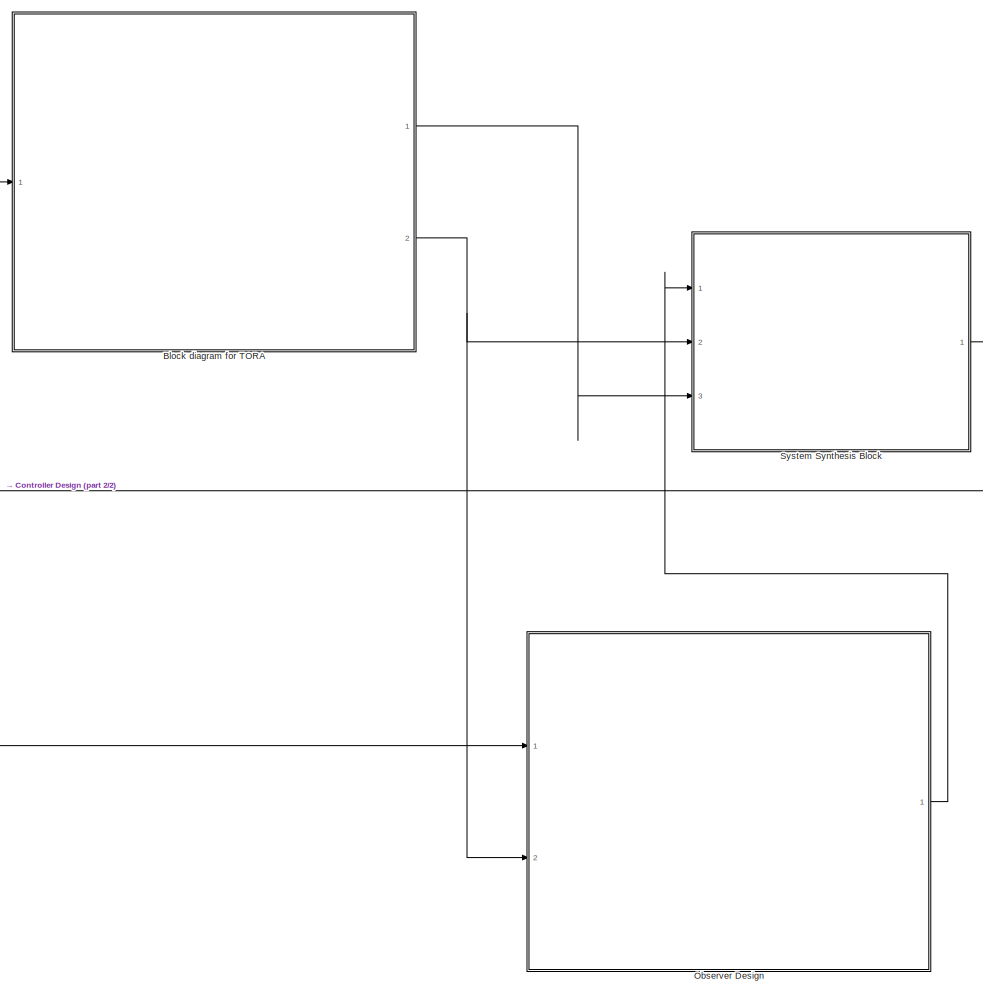
[diagram: root canvas - part 1/2, center side, full height]
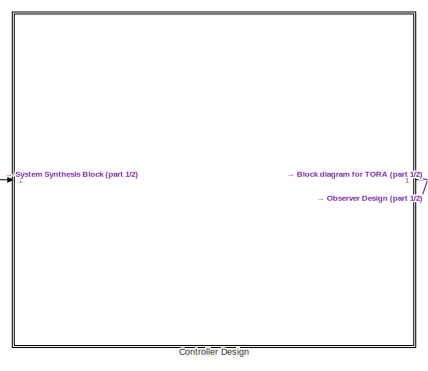
[diagram: root canvas - part 2/2, bottom left region]
MODEL slx_fd6124235038
KIND model
CONFIG AbsTol = auto
CONFIG EnableMultiTasking = off
CONFIG FixedStep = auto
CONFIG MaxStep = auto
CONFIG MinStep = auto
CONFIG RelTol = 1e-3
CONFIG SampleTimeConstraint = Unconstrained
CONFIG Solver = VariableStepAuto
CONFIG SolverName = VariableStepAuto
CONFIG StartTime = 0.0
CONFIG StopTime = 10.0
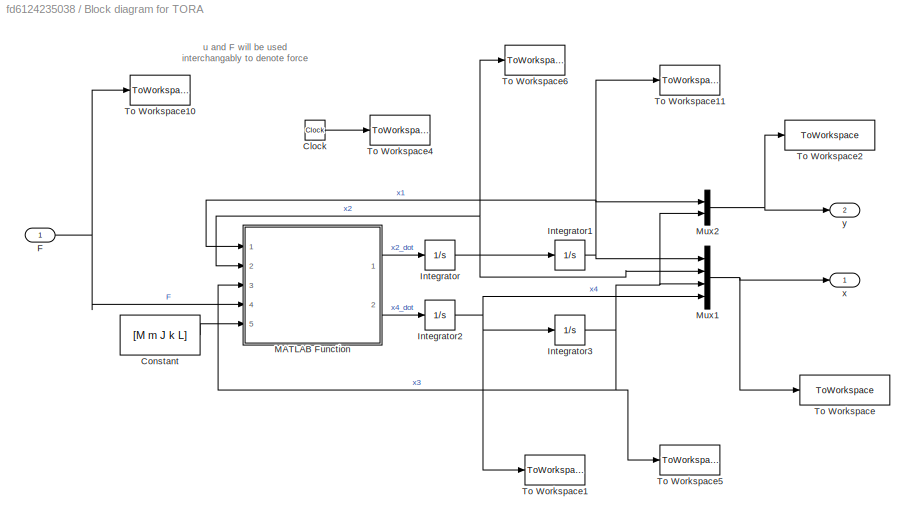
BLOCK [SubSystem] Block diagram for TORA
  Ports = [1, 2]
  RequestExecContextInheritance = off
BLOCK [Clock] Block diagram for TORA/Clock
BLOCK [Constant] Block diagram for TORA/Constant
  Value = [M m J k L]
BLOCK [Inport] Block diagram for TORA/F
  IconDisplay = Port number
BLOCK [Integrator] Block diagram for TORA/Integrator
  InitialCondition = x0(2)
  Ports = [1, 1]
BLOCK [Integrator] Block diagram for TORA/Integrator1
  InitialCondition = x0(1)
  Ports = [1, 1]
BLOCK [Integrator] Block diagram for TORA/Integrator2
  InitialCondition = x0(4)
  Ports = [1, 1]
BLOCK [Integrator] Block diagram for TORA/Integrator3
  InitialCondition = x0(3)
  Ports = [1, 1]
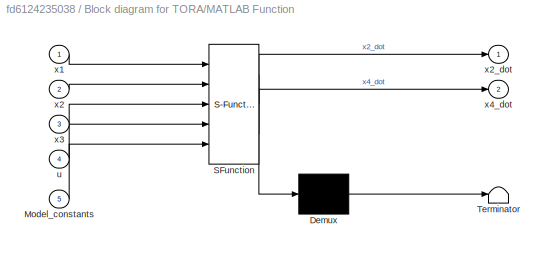
BLOCK [SubSystem] Block diagram for TORA/MATLAB Function
  ErrorFcn = Stateflow.Translate.translate
  PermitHierarchicalResolution = ExplicitOnly
  Ports = [5, 2]
  RequestExecContextInheritance = off
  SFBlockType = MATLAB Function
  TreatAsAtomicUnit = on
BLOCK [Demux] Block diagram for TORA/MATLAB Function/ Demux 
  DisplayOption = bar
  Outputs = 1
  Ports = [1, 1]
BLOCK [S-Function] Block diagram for TORA/MATLAB Function/ SFunction 
  EnableBusSupport = on
  FunctionName = sf_sfun
  PortCounts = [5 3]
  Ports = [5, 3]
  SFcnIsStateOwnerBlock = off
  SFunctionDeploymentMode = off
  Tag = Stateflow S-Function 2
BLOCK [Terminator] Block diagram for TORA/MATLAB Function/ Terminator 
BLOCK [Inport] Block diagram for TORA/MATLAB Function/Model_constants
  IconDisplay = Port number
  Port = 5
BLOCK [Inport] Block diagram for TORA/MATLAB Function/u
  IconDisplay = Port number
  Port = 4
BLOCK [Inport] Block diagram for TORA/MATLAB Function/x1
  IconDisplay = Port number
BLOCK [Inport] Block diagram for TORA/MATLAB Function/x2
  IconDisplay = Port number
  Port = 2
BLOCK [Outport] Block diagram for TORA/MATLAB Function/x2_dot
  IconDisplay = Port number
BLOCK [Inport] Block diagram for TORA/MATLAB Function/x3
  IconDisplay = Port number
  Port = 3
BLOCK [Outport] Block diagram for TORA/MATLAB Function/x4_dot
  IconDisplay = Port number
  Port = 2
BLOCK [Mux] Block diagram for TORA/Mux1
  DisplayOption = bar
  Ports = [4, 1]
BLOCK [Mux] Block diagram for TORA/Mux2
  DisplayOption = bar
  Inputs = 2
  Ports = [2, 1]
BLOCK [ToWorkspace] Block diagram for TORA/To Workspace
  FixptAsFi = on
  MaxDataPoints = inf
  Ports = [1]
  SampleTime = -1
  VariableName = x
BLOCK [ToWorkspace] Block diagram for TORA/To Workspace1
  MaxDataPoints = inf
  Ports = [1]
  SampleTime = -1
  VariableName = x4
BLOCK [ToWorkspace] Block diagram for TORA/To Workspace10
  MaxDataPoints = inf
  Ports = [1]
  SampleTime = -1
  VariableName = F
BLOCK [ToWorkspace] Block diagram for TORA/To Workspace11
  MaxDataPoints = inf
  Ports = [1]
  SampleTime = -1
  VariableName = x1
BLOCK [ToWorkspace] Block diagram for TORA/To Workspace2
  FixptAsFi = on
  MaxDataPoints = inf
  Ports = [1]
  SampleTime = -1
  VariableName = y
BLOCK [ToWorkspace] Block diagram for TORA/To Workspace4
  MaxDataPoints = inf
  Ports = [1]
  SampleTime = -1
  VariableName = t
BLOCK [ToWorkspace] Block diagram for TORA/To Workspace5
  MaxDataPoints = inf
  Ports = [1]
  SampleTime = -1
  VariableName = x3
BLOCK [ToWorkspace] Block diagram for TORA/To Workspace6
  MaxDataPoints = inf
  Ports = [1]
  SampleTime = -1
  VariableName = x2
BLOCK [Outport] Block diagram for TORA/x
  IconDisplay = Port number
  VectorParamsAs1DForOutWhenUnconnected = off
BLOCK [Outport] Block diagram for TORA/y
  IconDisplay = Port number
  Port = 2
  VectorParamsAs1DForOutWhenUnconnected = off
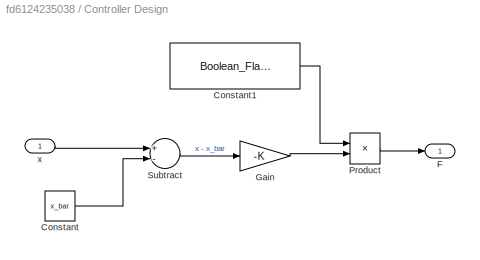
BLOCK [SubSystem] Controller Design 
  Ports = [1, 1]
  RequestExecContextInheritance = off
BLOCK [Constant] Controller Design /Constant
  Value = x_bar
BLOCK [Constant] Controller Design /Constant1
  Value = Boolean_Flag_for_Controller
BLOCK [Outport] Controller Design /F
  IconDisplay = Port number
BLOCK [Gain] Controller Design /Gain
  Gain = -K
  Multiplication = Matrix(K*u)
  OutDataTypeStr = Inherit: Inherit via internal rule
  ParamDataTypeStr = Inherit: Inherit via internal rule
  SaturateOnIntegerOverflow = off
BLOCK [Product] Controller Design /Product
  InputSameDT = off
  OutDataTypeStr = Inherit: Inherit via internal rule
  Ports = [2, 1]
  RndMeth = Floor
  SaturateOnIntegerOverflow = off
BLOCK [Sum] Controller Design /Subtract
  InputSameDT = off
  Inputs = +-
  OutDataTypeStr = Inherit: Inherit via internal rule
  Ports = [2, 1]
  SaturateOnIntegerOverflow = off
BLOCK [Inport] Controller Design /x
  IconDisplay = Port number
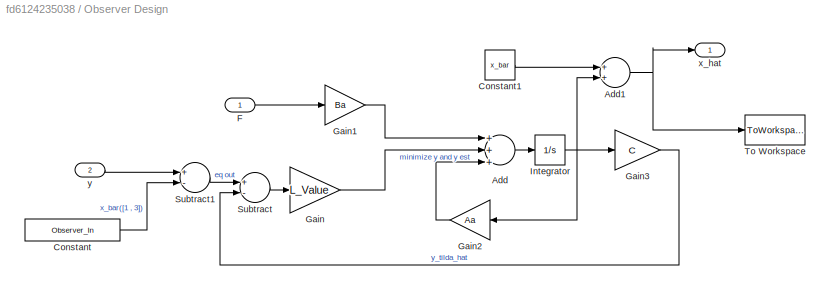
BLOCK [SubSystem] Observer Design
  Ports = [2, 1]
  RequestExecContextInheritance = off
BLOCK [Sum] Observer Design/Add
  InputSameDT = off
  Inputs = +++
  OutDataTypeStr = Inherit: Inherit via internal rule
  Ports = [3, 1]
  SaturateOnIntegerOverflow = off
BLOCK [Sum] Observer Design/Add1
  InputSameDT = off
  OutDataTypeStr = Inherit: Inherit via internal rule
  Ports = [2, 1]
  SaturateOnIntegerOverflow = off
BLOCK [Constant] Observer Design/Constant
  Value = Observer_In
BLOCK [Constant] Observer Design/Constant1
  Value = x_bar
BLOCK [Inport] Observer Design/F
  IconDisplay = Port number
BLOCK [Gain] Observer Design/Gain
  Gain = L_Value
  Multiplication = Matrix(K*u)
  OutDataTypeStr = Inherit: Inherit via internal rule
  ParamDataTypeStr = Inherit: Inherit via internal rule
  SaturateOnIntegerOverflow = off
BLOCK [Gain] Observer Design/Gain1
  Gain = Ba
  Multiplication = Matrix(K*u)
  OutDataTypeStr = Inherit: Inherit via internal rule
  ParamDataTypeStr = Inherit: Inherit via internal rule
  SaturateOnIntegerOverflow = off
BLOCK [Gain] Observer Design/Gain2
  Gain = Aa
  Multiplication = Matrix(K*u)
  OutDataTypeStr = Inherit: Inherit via internal rule
  ParamDataTypeStr = Inherit: Inherit via internal rule
  SaturateOnIntegerOverflow = off
BLOCK [Gain] Observer Design/Gain3
  Gain = C
  Multiplication = Matrix(K*u)
  OutDataTypeStr = Inherit: Inherit via internal rule
  ParamDataTypeStr = Inherit: Inherit via internal rule
  SaturateOnIntegerOverflow = off
BLOCK [Integrator] Observer Design/Integrator
  Ports = [1, 1]
BLOCK [Sum] Observer Design/Subtract
  InputSameDT = off
  Inputs = +-
  OutDataTypeStr = Inherit: Inherit via internal rule
  Ports = [2, 1]
  SaturateOnIntegerOverflow = off
BLOCK [Sum] Observer Design/Subtract1
  InputSameDT = off
  Inputs = +-
  OutDataTypeStr = Inherit: Inherit via internal rule
  Ports = [2, 1]
  SaturateOnIntegerOverflow = off
BLOCK [ToWorkspace] Observer Design/To Workspace
  FixptAsFi = on
  MaxDataPoints = inf
  Ports = [1]
  SampleTime = -1
  VariableName = x_hat
BLOCK [Outport] Observer Design/x_hat
  IconDisplay = Port number
  VectorParamsAs1DForOutWhenUnconnected = off
BLOCK [Inport] Observer Design/y
  IconDisplay = Port number
  Port = 2
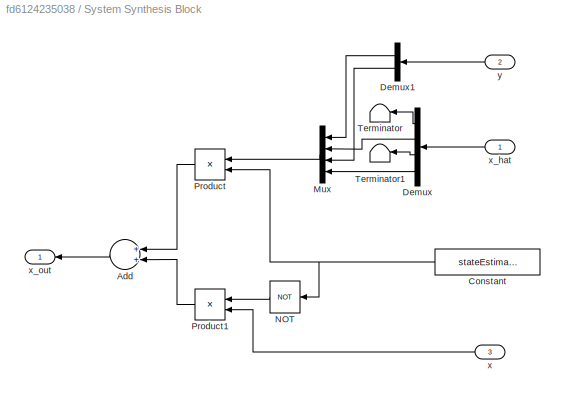
BLOCK [SubSystem] System Synthesis Block
  Ports = [3, 1]
  RequestExecContextInheritance = off
BLOCK [Sum] System Synthesis Block/Add
  InputSameDT = off
  OutDataTypeStr = Inherit: Inherit via internal rule
  Ports = [2, 1]
  SaturateOnIntegerOverflow = off
BLOCK [Constant] System Synthesis Block/Constant
  Value = stateEstimates
BLOCK [Demux] System Synthesis Block/Demux
  DisplayOption = bar
  Ports = [1, 4]
BLOCK [Demux] System Synthesis Block/Demux1
  DisplayOption = bar
  Outputs = 2
  Ports = [1, 2]
BLOCK [Mux] System Synthesis Block/Mux
  DisplayOption = bar
  Ports = [4, 1]
BLOCK [Logic] System Synthesis Block/NOT
  AllPortsSameDT = off
  IconShape = distinctive
  Operator = NOT
  OutDataTypeStr = boolean
  Ports = [1, 1]
BLOCK [Product] System Synthesis Block/Product
  InputSameDT = off
  OutDataTypeStr = Inherit: Inherit via internal rule
  Ports = [2, 1]
  RndMeth = Floor
  SaturateOnIntegerOverflow = off
BLOCK [Product] System Synthesis Block/Product1
  InputSameDT = off
  OutDataTypeStr = Inherit: Inherit via internal rule
  Ports = [2, 1]
  RndMeth = Floor
  SaturateOnIntegerOverflow = off
BLOCK [Terminator] System Synthesis Block/Terminator
BLOCK [Terminator] System Synthesis Block/Terminator1
BLOCK [Inport] System Synthesis Block/x
  IconDisplay = Port number
  Port = 3
BLOCK [Inport] System Synthesis Block/x_hat
  IconDisplay = Port number
BLOCK [Outport] System Synthesis Block/x_out
  IconDisplay = Port number
BLOCK [Inport] System Synthesis Block/y
  IconDisplay = Port number
  Port = 2
ANNOTATION Block diagram for TORA: u and F will be used interchangably to denote force
LINE Block diagram for TORA/Clock:1 -> Block diagram for TORA/To Workspace4:1
LINE Block diagram for TORA/Constant:1 -> Block diagram for TORA/MATLAB Function:5
NET Block diagram for TORA/F:1 -> Block diagram for TORA/MATLAB Function:4, Block diagram for TORA/To Workspace10:1
NET Block diagram for TORA/Integrator1:1 -> Block diagram for TORA/MATLAB Function:1, Block diagram for TORA/Mux1:1, Block diagram for TORA/Mux2:1, Block diagram for TORA/To Workspace11:1
NET Block diagram for TORA/Integrator2:1 -> Block diagram for TORA/Integrator3:1, Block diagram for TORA/Mux1:4, Block diagram for TORA/To Workspace1:1
NET Block diagram for TORA/Integrator3:1 -> Block diagram for TORA/MATLAB Function:3, Block diagram for TORA/Mux1:3, Block diagram for TORA/Mux2:2, Block diagram for TORA/To Workspace5:1
NET Block diagram for TORA/Integrator:1 -> Block diagram for TORA/Integrator1:1, Block diagram for TORA/MATLAB Function:2, Block diagram for TORA/Mux1:2, Block diagram for TORA/To Workspace6:1
LINE Block diagram for TORA/MATLAB Function:1 -> Block diagram for TORA/Integrator:1
LINE Block diagram for TORA/MATLAB Function:2 -> Block diagram for TORA/Integrator2:1
NET Block diagram for TORA/Mux1:1 -> Block diagram for TORA/To Workspace:1, Block diagram for TORA/x:1
NET Block diagram for TORA/Mux2:1 -> Block diagram for TORA/To Workspace2:1, Block diagram for TORA/y:1
LINE Block diagram for TORA:1 -> System Synthesis Block:3
NET Block diagram for TORA:2 -> Observer Design:2, System Synthesis Block:2
LINE Controller Design /Constant1:1 -> Controller Design /Product:1
LINE Controller Design /Constant:1 -> Controller Design /Subtract:2
LINE Controller Design /Gain:1 -> Controller Design /Product:2
LINE Controller Design /Product:1 -> Controller Design /F:1
LINE Controller Design /Subtract:1 -> Controller Design /Gain:1
LINE Controller Design /x:1 -> Controller Design /Subtract:1
NET Controller Design :1 -> Block diagram for TORA:1, Observer Design:1
NET Observer Design/Add1:1 -> Observer Design/To Workspace:1, Observer Design/x_hat:1
LINE Observer Design/Add:1 -> Observer Design/Integrator:1
LINE Observer Design/Constant1:1 -> Observer Design/Add1:1
LINE Observer Design/Constant:1 -> Observer Design/Subtract1:2
LINE Observer Design/F:1 -> Observer Design/Gain1:1
LINE Observer Design/Gain1:1 -> Observer Design/Add:1
LINE Observer Design/Gain2:1 -> Observer Design/Add:3
LINE Observer Design/Gain3:1 -> Observer Design/Subtract:2
LINE Observer Design/Gain:1 -> Observer Design/Add:2
NET Observer Design/Integrator:1 -> Observer Design/Add1:2, Observer Design/Gain2:1, Observer Design/Gain3:1
LINE Observer Design/Subtract1:1 -> Observer Design/Subtract:1
LINE Observer Design/Subtract:1 -> Observer Design/Gain:1
LINE Observer Design/y:1 -> Observer Design/Subtract1:1
LINE Observer Design:1 -> System Synthesis Block:1
LINE System Synthesis Block/Add:1 -> System Synthesis Block/x_out:1
NET System Synthesis Block/Constant:1 -> System Synthesis Block/NOT:1, System Synthesis Block/Product:2
LINE System Synthesis Block/Demux1:1 -> System Synthesis Block/Mux:1
LINE System Synthesis Block/Demux1:2 -> System Synthesis Block/Mux:3
LINE System Synthesis Block/Demux:1 -> System Synthesis Block/Terminator:1
LINE System Synthesis Block/Demux:2 -> System Synthesis Block/Mux:2
LINE System Synthesis Block/Demux:3 -> System Synthesis Block/Terminator1:1
LINE System Synthesis Block/Demux:4 -> System Synthesis Block/Mux:4
LINE System Synthesis Block/Mux:1 -> System Synthesis Block/Product:1
LINE System Synthesis Block/NOT:1 -> System Synthesis Block/Product1:1
LINE System Synthesis Block/Product1:1 -> System Synthesis Block/Add:2
LINE System Synthesis Block/Product:1 -> System Synthesis Block/Add:1
LINE System Synthesis Block/x:1 -> System Synthesis Block/Product1:2
LINE System Synthesis Block/x_hat:1 -> System Synthesis Block/Demux:1
LINE System Synthesis Block/y:1 -> System Synthesis Block/Demux1:1
LINE System Synthesis Block:1 -> Controller Design :1
note: NET lines group one-source signal fan-out (src -> all destinations, sorted); 1:1 wires keep LINE
CHART Block diagram for TORA/MATLAB Function states=1 transitions=1
  STATE_LABEL 'eML_blk_kernel()'
  STATE_LABEL 'SCRIPT:\nfunction [x2_dot,x4_dot] = NonLinearEquations(x1,x2,x3,u,Model_constants)\n\n%Get Model Constants:\nM = Model_constants(1);\nm = Model_constants(2);\nJ = Model_constants(3);\nk = Model_constants(4);\nL = Model_constants(5);\n\n% Equation for x2_dot\nx2_dot_nancy = (((m+M)*u)-(m*L*cos(x1)*(m*L*(x2^2)*sin(x1)-(k*(x3)))));\nx2_dot_donkey = ((J+(m*(L^2))*(m+M))-((m^2)*(L^2)*cos(x1)^2));\nx2_dot = x2_dot_n...<+228ch>'
